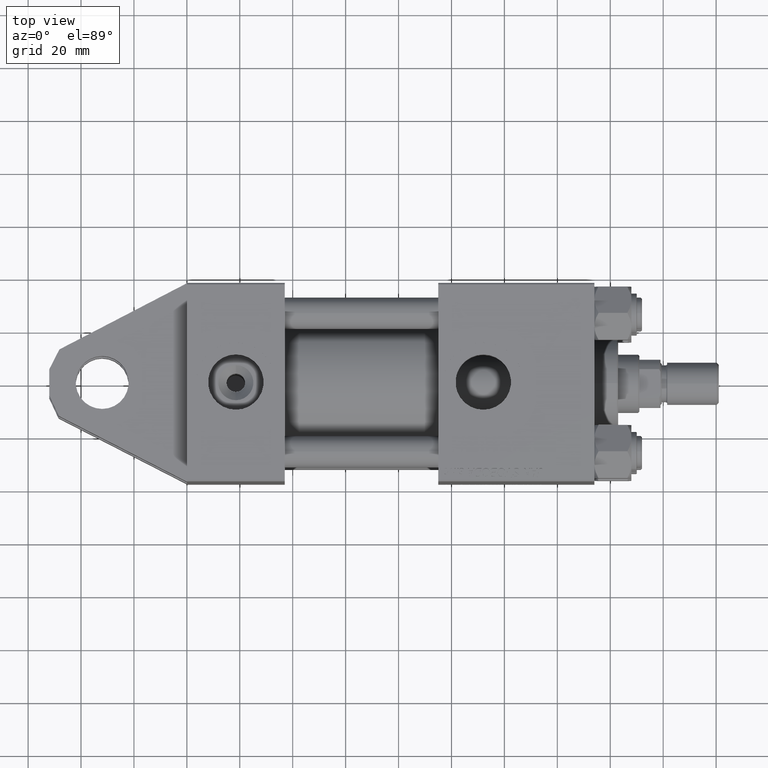
[diagram: clean part render]
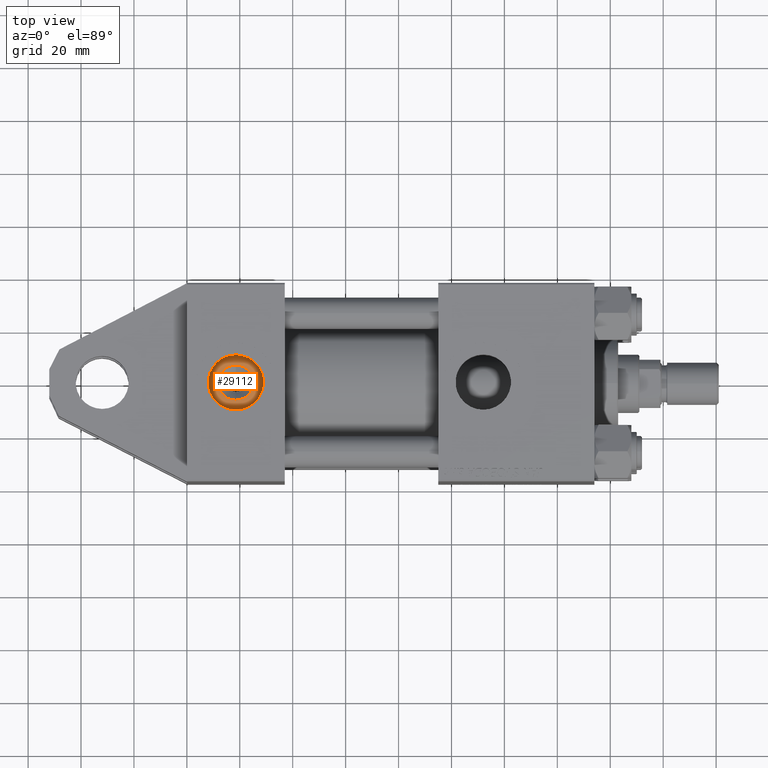
[diagram: same view with one face highlighted and labeled with its STEP entity id]
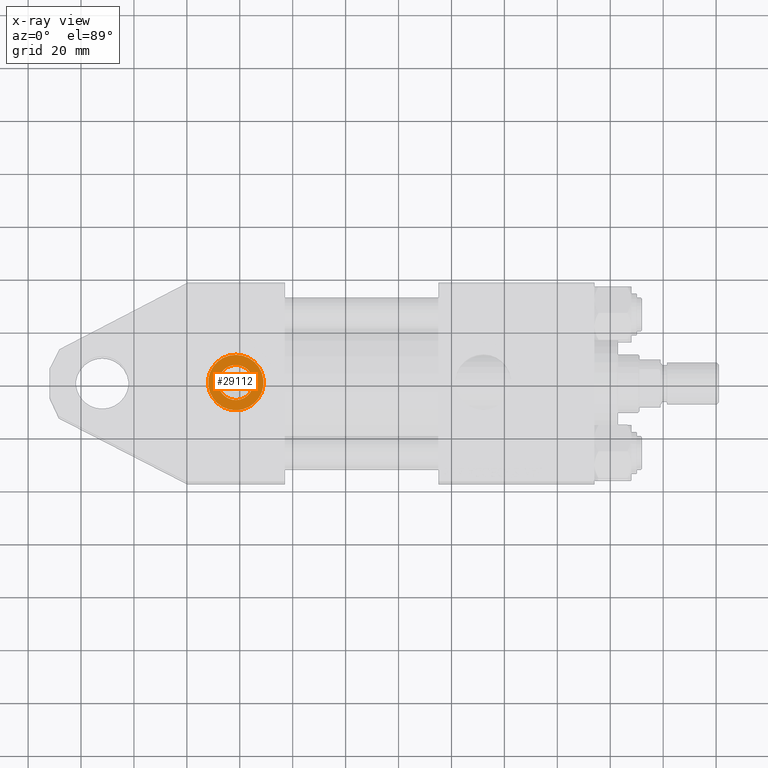
[diagram: x-ray of the same camera — body ghosted, the highlighted face saturated]
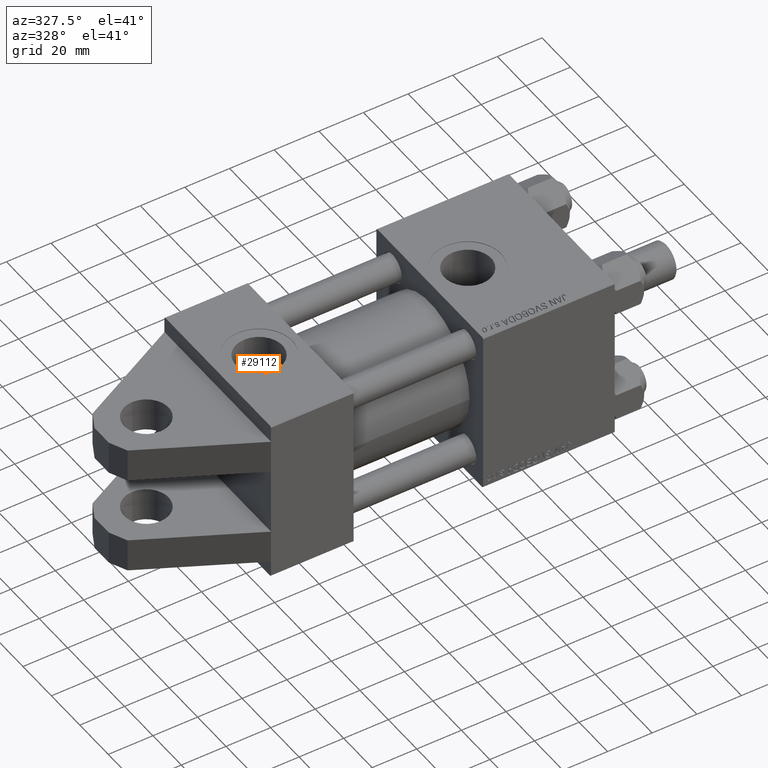
[diagram: same view with one face highlighted and labeled with its STEP entity id]
A machine part, top view. The second image highlights one B-rep face of the part: STEP entity #29112.
The next image is the same camera in x-ray: the body ghosted, the highlighted face saturated — about 0% of this face is hidden behind the body in this view.
A second angle (auxiliary view) of the same face is appended — the face is thin or edge-on in the first view.
In plain terms, the highlighted planar face has unit normal (0, -0, 1).
Its self-contained STEP definition (entity closure, byte-faithful):
#191 = VERTEX_POINT ( 'NONE', #14350 ) ;
#731 = CARTESIAN_POINT ( 'NONE',  ( 18.50000000000000000, -26.60000000000000497, 6.640000000000089386 ) ) ;
#1590 = DIRECTION ( 'NONE',  ( 0.000000000000000000, -1.000000000000000000, -8.673617379884036705E-17 ) ) ;
#3087 = CARTESIAN_POINT ( 'NONE',  ( 18.50000000000000000, -26.60000000000000497, -6.640000000000093827 ) ) ;
#6481 = CARTESIAN_POINT ( 'NONE',  ( 18.50000000000000000, -26.60000000000000497, -2.524022657546255111E-15 ) ) ;
#8996 = CARTESIAN_POINT ( 'NONE',  ( 18.50000000000000000, -26.60000000000000497, -2.524022657546255111E-15 ) ) ;
#9923 = CIRCLE ( 'NONE', #18368, 6.640000000000091163 ) ;
#10917 = EDGE_CURVE ( 'NONE', #191, #27028, #40968, .T. ) ;
#12411 = EDGE_CURVE ( 'NONE', #14303, #43316, #25896, .T. ) ;
#13422 = AXIS2_PLACEMENT_3D ( 'NONE', #6481, #33661, #29447 ) ;
#13792 = EDGE_CURVE ( 'NONE', #43316, #14303, #9923, .T. ) ;
#14303 = VERTEX_POINT ( 'NONE', #731 ) ;
#14343 = CARTESIAN_POINT ( 'NONE',  ( 18.50000000000000000, -26.60000000000000497, -2.524022657546253928E-15 ) ) ;
#14345 = FACE_BOUND ( 'NONE', #36606, .T. ) ;
#14350 = CARTESIAN_POINT ( 'NONE',  ( 18.50000000000000000, -26.60000000000000497, 10.47999999999999865 ) ) ;
#16626 = AXIS2_PLACEMENT_3D ( 'NONE', #24322, #41104, #29244 ) ;
#17117 = EDGE_CURVE ( 'NONE', #27028, #191, #52157, .T. ) ;
#18299 = DIRECTION ( 'NONE',  ( -0.000000000000000000, 1.000000000000000000, 8.673617379884036705E-17 ) ) ;
#18368 = AXIS2_PLACEMENT_3D ( 'NONE', #14343, #18299, #50191 ) ;
#19869 = ORIENTED_EDGE ( 'NONE', *, *, #13792, .T. ) ;
#20022 = EDGE_LOOP ( 'NONE', ( #23541, #20273 ) ) ;
#20061 = CARTESIAN_POINT ( 'NONE',  ( 18.50000000000000000, -26.60000000000000497, -2.524022657546255111E-15 ) ) ;
#20273 = ORIENTED_EDGE ( 'NONE', *, *, #10917, .T. ) ;
#23541 = ORIENTED_EDGE ( 'NONE', *, *, #17117, .T. ) ;
#24322 = CARTESIAN_POINT ( 'NONE',  ( 18.50000000000000000, -26.60000000000000497, -2.524022657546253928E-15 ) ) ;
#25896 = CIRCLE ( 'NONE', #16626, 6.640000000000091163 ) ;
#27028 = VERTEX_POINT ( 'NONE', #51743 ) ;
#29112 = ADVANCED_FACE ( 'NONE', ( #14345, #36137 ), #31932, .T. ) ;
#29244 = DIRECTION ( 'NONE',  ( 0.000000000000000000, 0.000000000000000000, -1.000000000000000000 ) ) ;
#29447 = DIRECTION ( 'NONE',  ( 0.000000000000000000, 0.000000000000000000, -1.000000000000000000 ) ) ;
#30425 = DIRECTION ( 'NONE',  ( 0.000000000000000000, -1.000000000000000000, -8.673617379884036705E-17 ) ) ;
#31932 = PLANE ( 'NONE',  #44835 ) ;
#33661 = DIRECTION ( 'NONE',  ( 0.000000000000000000, -1.000000000000000000, -8.673617379884036705E-17 ) ) ;
#36137 = FACE_OUTER_BOUND ( 'NONE', #20022, .T. ) ;
#36606 = EDGE_LOOP ( 'NONE', ( #19869, #48042 ) ) ;
#40634 = DIRECTION ( 'NONE',  ( 0.000000000000000000, 0.000000000000000000, -1.000000000000000000 ) ) ;
#40968 = CIRCLE ( 'NONE', #51074, 10.48000000000000043 ) ;
#41104 = DIRECTION ( 'NONE',  ( -0.000000000000000000, 1.000000000000000000, 8.673617379884036705E-17 ) ) ;
#43316 = VERTEX_POINT ( 'NONE', #3087 ) ;
#44835 = AXIS2_PLACEMENT_3D ( 'NONE', #20061, #30425, #51709 ) ;
#48042 = ORIENTED_EDGE ( 'NONE', *, *, #12411, .T. ) ;
#50191 = DIRECTION ( 'NONE',  ( 0.000000000000000000, 0.000000000000000000, -1.000000000000000000 ) ) ;
#51074 = AXIS2_PLACEMENT_3D ( 'NONE', #8996, #1590, #40634 ) ;
#51709 = DIRECTION ( 'NONE',  ( 0.000000000000000000, 8.673617379884036705E-17, -1.000000000000000000 ) ) ;
#51743 = CARTESIAN_POINT ( 'NONE',  ( 18.50000000000000000, -26.60000000000000497, -10.48000000000000220 ) ) ;
#52157 = CIRCLE ( 'NONE', #13422, 10.48000000000000043 ) ;